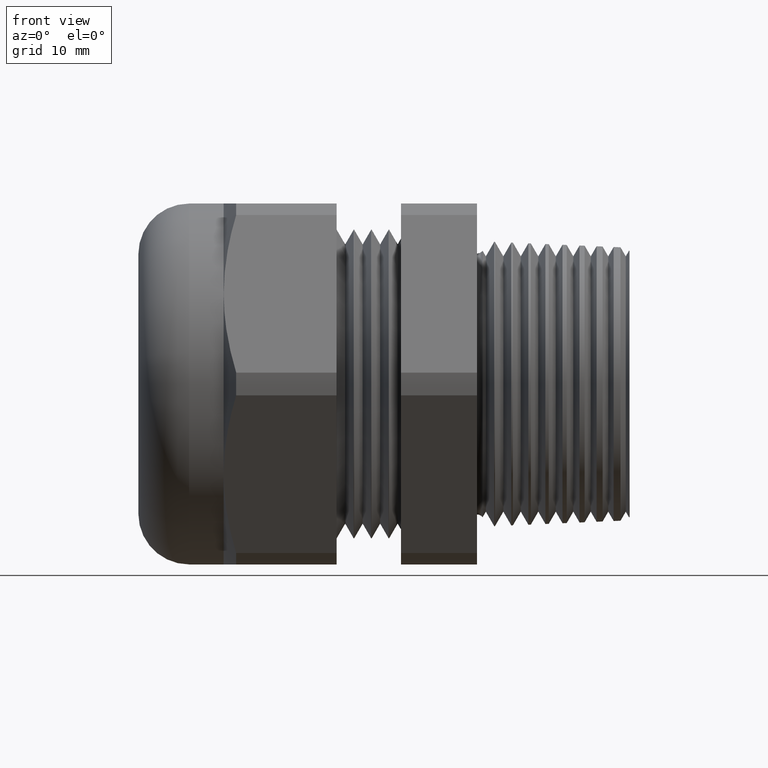
[diagram: clean part render]
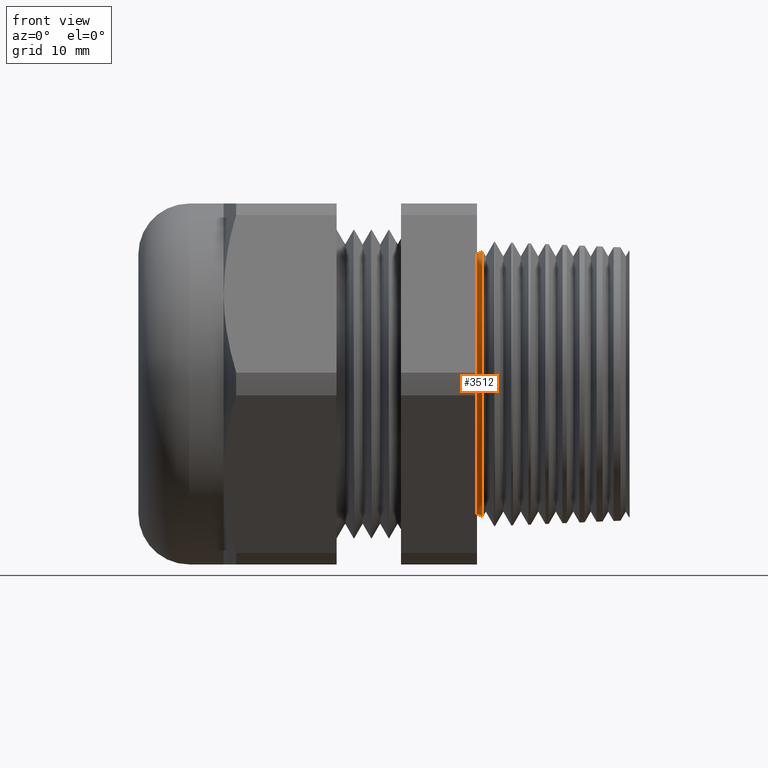
[diagram: same view with one face highlighted and labeled with its STEP entity id]
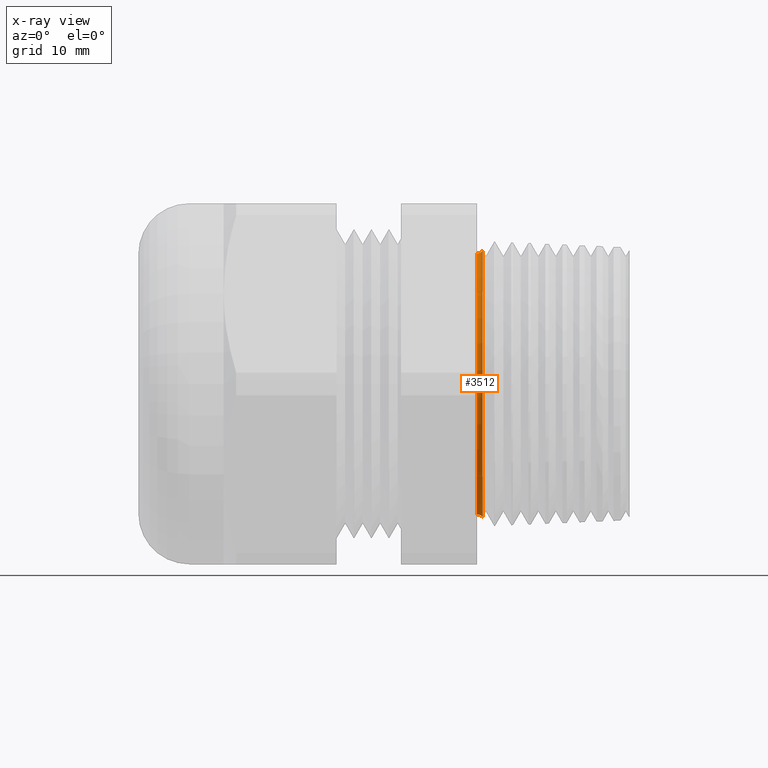
[diagram: x-ray of the same camera — body ghosted, the highlighted face saturated]
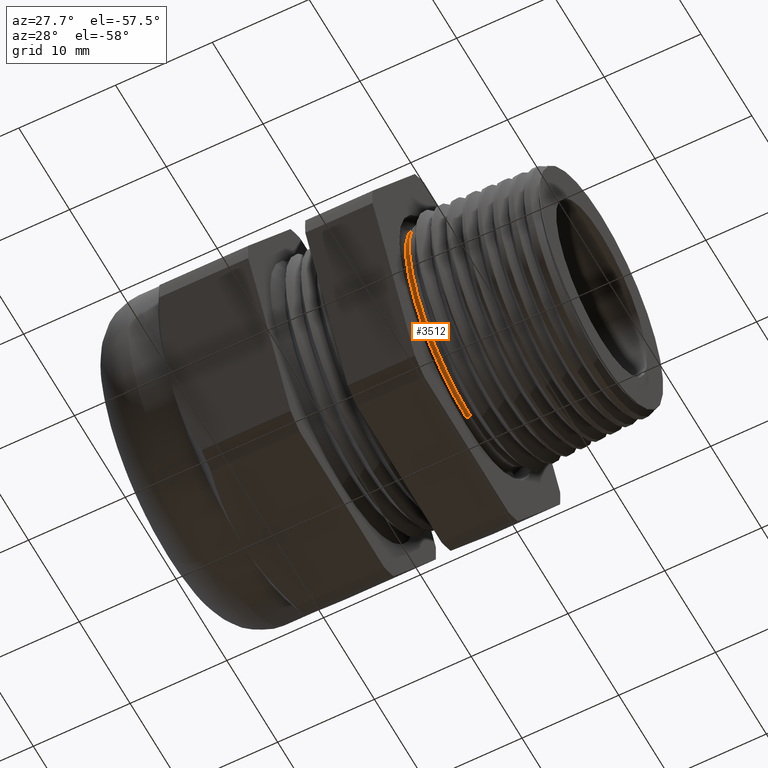
[diagram: same view with one face highlighted and labeled with its STEP entity id]
A machine part, front view. The second image highlights one B-rep face of the part: STEP entity #3512.
The next image is the same camera in x-ray: the body ghosted, the highlighted face saturated — about 0% of this face is hidden behind the body in this view.
A second angle (auxiliary view) of the same face is appended — the face is thin or edge-on in the first view.
In plain terms, the highlighted toroidal blend (fillet) surface has major radius 12.573 mm and minor (blend) radius 0.635 mm.
Its self-contained STEP definition (entity closure, byte-faithful):
#316 = EDGE_CURVE ( 'NONE', #3521, #3632, #1491, .T. ) ;
#317 = ORIENTED_EDGE ( 'NONE', *, *, #3633, .F. ) ;
#375 = ORIENTED_EDGE ( 'NONE', *, *, #316, .F. ) ;
#1487 = DIRECTION ( 'NONE',  ( 0.0000000000000000000, 0.0000000000000000000, 1.000000000000000000 ) ) ;
#1488 = DIRECTION ( 'NONE',  ( 1.000000000000000000, 0.0000000000000000000, 0.0000000000000000000 ) ) ;
#1489 = CARTESIAN_POINT ( 'NONE',  ( 0.02011669327523300800, 0.0000000000000000000, 0.0000000000000000000 ) ) ;
#1490 = AXIS2_PLACEMENT_3D ( 'NONE', #1489, #1488, #1487 ) ;
#1491 = CIRCLE ( 'NONE', #1490, 0.4801568651670166100 ) ;
#2835 = DIRECTION ( 'NONE',  ( 1.000000000000000000, 0.0000000000000000000, 0.0000000000000000000 ) ) ;
#2836 = AXIS2_PLACEMENT_3D ( 'NONE', #2839, #2835, #2897 ) ;
#2837 = TOROIDAL_SURFACE ( 'NONE', #2836, 0.4950000000000000500, 0.02499999999999983500 ) ;
#2839 = CARTESIAN_POINT ( 'NONE',  ( 0.0000000000000000000, 0.0000000000000000000, 0.0000000000000000000 ) ) ;
#2840 = FACE_OUTER_BOUND ( 'NONE', #3509, .T. ) ;
#2841 = CARTESIAN_POINT ( 'NONE',  ( -3.061616997868358500E-018, 5.755839955992562100E-017, 0.4700000000000002000 ) ) ;
#2853 = DIRECTION ( 'NONE',  ( 0.0000000000000000000, 0.0000000000000000000, -1.000000000000000000 ) ) ;
#2854 = DIRECTION ( 'NONE',  ( 1.000000000000000000, 0.0000000000000000000, 0.0000000000000000000 ) ) ;
#2855 = AXIS2_PLACEMENT_3D ( 'NONE', #2861, #2854, #2853 ) ;
#2856 = CIRCLE ( 'NONE', #2855, 0.4700000000000002000 ) ;
#2861 = CARTESIAN_POINT ( 'NONE',  ( -3.061616997868362800E-018, 0.0000000000000000000, 0.0000000000000000000 ) ) ;
#2879 = DIRECTION ( 'NONE',  ( 0.0000000000000000000, 1.224646799147352200E-016, 1.000000000000000000 ) ) ;
#2880 = DIRECTION ( 'NONE',  ( 0.0000000000000000000, 1.000000000000000000, -1.224646799147353200E-016 ) ) ;
#2881 = CARTESIAN_POINT ( 'NONE',  ( 0.0000000000000000000, 6.062001655779398500E-017, 0.4950000000000000500 ) ) ;
#2882 = AXIS2_PLACEMENT_3D ( 'NONE', #2881, #2880, #2879 ) ;
#2883 = CIRCLE ( 'NONE', #2882, 0.02499999999999987000 ) ;
#2885 = CARTESIAN_POINT ( 'NONE',  ( 0.02011669327523300800, 0.0000000000000000000, 0.4801568651670166100 ) ) ;
#2897 = DIRECTION ( 'NONE',  ( 0.0000000000000000000, 0.0000000000000000000, -1.000000000000000000 ) ) ;
#3041 = DIRECTION ( 'NONE',  ( 0.0000000000000000000, 0.0000000000000000000, -1.000000000000000000 ) ) ;
#3042 = DIRECTION ( 'NONE',  ( 0.0000000000000000000, -1.000000000000000000, 0.0000000000000000000 ) ) ;
#3043 = CARTESIAN_POINT ( 'NONE',  ( 0.0000000000000000000, 0.0000000000000000000, -0.4950000000000000500 ) ) ;
#3044 = AXIS2_PLACEMENT_3D ( 'NONE', #3043, #3042, #3041 ) ;
#3045 = CIRCLE ( 'NONE', #3044, 0.02499999999999987000 ) ;
#3046 = CARTESIAN_POINT ( 'NONE',  ( 0.02011669327523300800, 5.880225680154141000E-017, -0.4801568651670166100 ) ) ;
#3047 = CARTESIAN_POINT ( 'NONE',  ( -3.061616997868358500E-018, 0.0000000000000000000, -0.4700000000000002000 ) ) ;
#3496 = EDGE_CURVE ( 'NONE', #3510, #3628, #2856, .T. ) ;
#3509 = EDGE_LOOP ( 'NONE', ( #3511, #3520, #317, #375 ) ) ;
#3510 = VERTEX_POINT ( 'NONE', #2841 ) ;
#3511 = ORIENTED_EDGE ( 'NONE', *, *, #3523, .T. ) ;
#3512 = ADVANCED_FACE ( 'NONE', ( #2840 ), #2837, .F. ) ;
#3520 = ORIENTED_EDGE ( 'NONE', *, *, #3496, .T. ) ;
#3521 = VERTEX_POINT ( 'NONE', #2885 ) ;
#3523 = EDGE_CURVE ( 'NONE', #3521, #3510, #2883, .T. ) ;
#3628 = VERTEX_POINT ( 'NONE', #3047 ) ;
#3632 = VERTEX_POINT ( 'NONE', #3046 ) ;
#3633 = EDGE_CURVE ( 'NONE', #3632, #3628, #3045, .T. ) ;